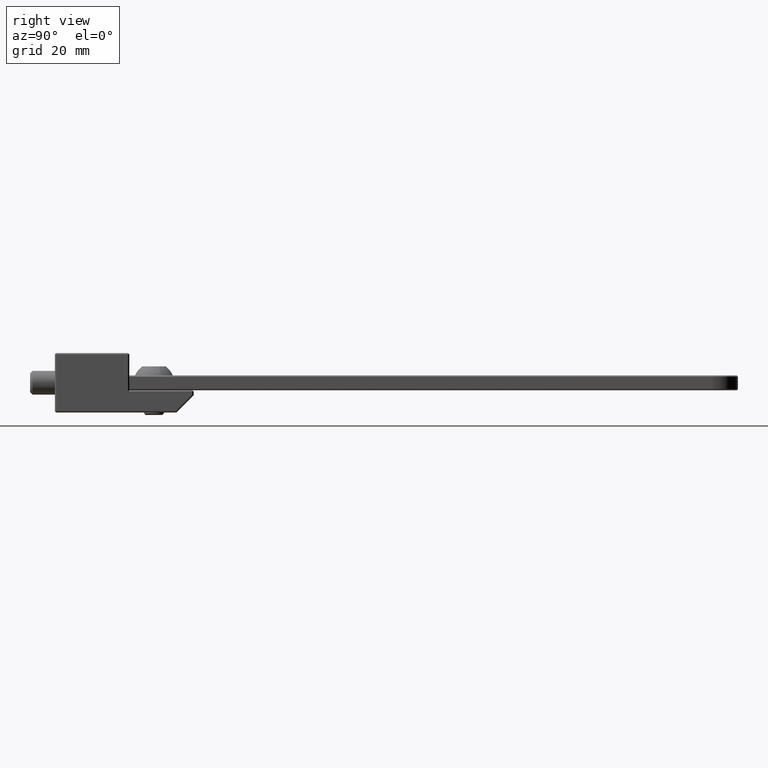
[diagram: clean part render]
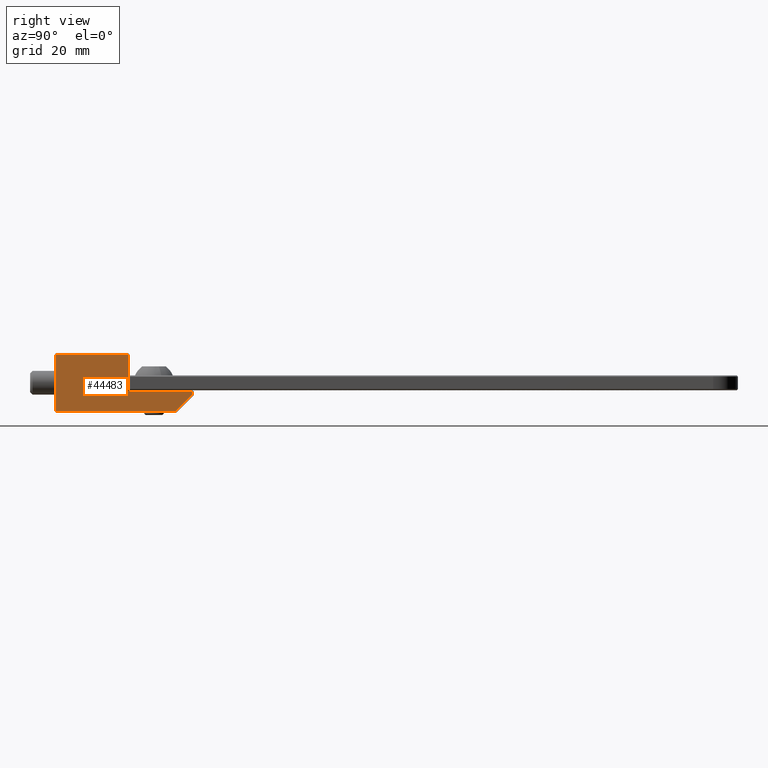
[diagram: same view with one face highlighted and labeled with its STEP entity id]
A machine part, right view. The second image highlights one B-rep face of the part: STEP entity #44483.
In plain terms, the highlighted planar face has unit normal (-1, 0, 0).
Its self-contained STEP definition (entity closure, byte-faithful):
#1872 = VERTEX_POINT ( 'NONE', #49801 ) ;
#3581 = CARTESIAN_POINT ( 'NONE',  ( 17.50000000000001066, 27.82322330470335814, -2.323223304703352809 ) ) ;
#4687 = FACE_OUTER_BOUND ( 'NONE', #81564, .T. ) ;
#5283 = PLANE ( 'NONE',  #11300 ) ;
#6415 = CARTESIAN_POINT ( 'NONE',  ( 17.50000000000001066, 27.74999999999999289, -1.499999999999999778 ) ) ;
#6916 = CARTESIAN_POINT ( 'NONE',  ( 17.50000000000001066, 0.2500000000000071609, 5.749999999999993783 ) ) ;
#7373 = LINE ( 'NONE', #79036, #62157 ) ;
#10467 = CARTESIAN_POINT ( 'NONE',  ( 17.50000000000001066, 0.2500000000000071609, -5.749999999999999112 ) ) ;
#11300 = AXIS2_PLACEMENT_3D ( 'NONE', #50052, #60807, #59616 ) ;
#13458 = VERTEX_POINT ( 'NONE', #6916 ) ;
#15948 = VECTOR ( 'NONE', #19461, 1000.000000000000000 ) ;
#16113 = DIRECTION ( 'NONE',  ( 0.000000000000000000, -1.000000000000000000, 0.000000000000000000 ) ) ;
#19461 = DIRECTION ( 'NONE',  ( 0.000000000000000000, 0.000000000000000000, 1.000000000000000000 ) ) ;
#23824 = LINE ( 'NONE', #53609, #66508 ) ;
#28062 = EDGE_CURVE ( 'NONE', #75432, #13458, #83313, .T. ) ;
#28079 = ORIENTED_EDGE ( 'NONE', *, *, #55759, .T. ) ;
#28238 = EDGE_CURVE ( 'NONE', #72730, #66804, #7373, .T. ) ;
#30462 = LINE ( 'NONE', #3581, #75295 ) ;
#33608 = VECTOR ( 'NONE', #36149, 1000.000000000000000 ) ;
#36149 = DIRECTION ( 'NONE',  ( 0.000000000000000000, -1.000000000000000000, 0.000000000000000000 ) ) ;
#44483 = ADVANCED_FACE ( 'NONE', ( #4687 ), #5283, .F. ) ;
#44571 = CARTESIAN_POINT ( 'NONE',  ( 17.50000000000001066, 24.39644660940670562, -5.749999999999999112 ) ) ;
#45110 = ORIENTED_EDGE ( 'NONE', *, *, #97557, .T. ) ;
#49535 = DIRECTION ( 'NONE',  ( 0.000000000000000000, 0.7071067811865483499, 0.7071067811865467956 ) ) ;
#49801 = CARTESIAN_POINT ( 'NONE',  ( 17.50000000000001066, 27.74999999999999289, -2.396446609406716721 ) ) ;
#50052 = CARTESIAN_POINT ( 'NONE',  ( 17.50000000000001066, 28.00000000000000000, -5.999999999999999112 ) ) ;
#50426 = VERTEX_POINT ( 'NONE', #58896 ) ;
#51787 = DIRECTION ( 'NONE',  ( 0.000000000000000000, -0.000000000000000000, 1.000000000000000000 ) ) ;
#53609 = CARTESIAN_POINT ( 'NONE',  ( 17.50000000000001066, 0.2500000000000071609, -5.999999999999999112 ) ) ;
#55294 = LINE ( 'NONE', #82172, #15948 ) ;
#55759 = EDGE_CURVE ( 'NONE', #81566, #75432, #55294, .T. ) ;
#58896 = CARTESIAN_POINT ( 'NONE',  ( 17.50000000000001066, 27.74999999999999289, -1.749999999999999778 ) ) ;
#59616 = DIRECTION ( 'NONE',  ( 0.000000000000000000, 0.000000000000000000, 1.000000000000000000 ) ) ;
#59934 = EDGE_CURVE ( 'NONE', #66804, #1872, #30462, .T. ) ;
#60386 = ORIENTED_EDGE ( 'NONE', *, *, #63991, .T. ) ;
#60807 = DIRECTION ( 'NONE',  ( -1.000000000000000000, 0.000000000000000000, 0.000000000000000000 ) ) ;
#62157 = VECTOR ( 'NONE', #115492, 1000.000000000000000 ) ;
#63023 = CARTESIAN_POINT ( 'NONE',  ( 17.50000000000001066, 28.00000000000000000, 5.749999999999993783 ) ) ;
#63991 = EDGE_CURVE ( 'NONE', #1872, #50426, #98939, .T. ) ;
#64757 = CARTESIAN_POINT ( 'NONE',  ( 17.50000000000001066, 14.75000000000000000, 5.749999999999993783 ) ) ;
#66508 = VECTOR ( 'NONE', #107993, 1000.000000000000000 ) ;
#66804 = VERTEX_POINT ( 'NONE', #44571 ) ;
#67552 = ORIENTED_EDGE ( 'NONE', *, *, #28238, .T. ) ;
#69878 = LINE ( 'NONE', #87195, #107103 ) ;
#72730 = VERTEX_POINT ( 'NONE', #10467 ) ;
#72835 = VECTOR ( 'NONE', #51787, 1000.000000000000000 ) ;
#75295 = VECTOR ( 'NONE', #49535, 999.9999999999998863 ) ;
#75432 = VERTEX_POINT ( 'NONE', #64757 ) ;
#79036 = CARTESIAN_POINT ( 'NONE',  ( 17.50000000000001066, 28.00000000000000000, -5.749999999999999112 ) ) ;
#81564 = EDGE_LOOP ( 'NONE', ( #113362, #113103, #67552, #89923, #60386, #45110, #28079 ) ) ;
#81566 = VERTEX_POINT ( 'NONE', #102376 ) ;
#82172 = CARTESIAN_POINT ( 'NONE',  ( 17.50000000000001066, 14.75000000000000000, -5.999999999999999112 ) ) ;
#83313 = LINE ( 'NONE', #63023, #33608 ) ;
#87195 = CARTESIAN_POINT ( 'NONE',  ( 17.50000000000001066, 28.00000000000000000, -1.749999999999999778 ) ) ;
#89923 = ORIENTED_EDGE ( 'NONE', *, *, #59934, .T. ) ;
#97557 = EDGE_CURVE ( 'NONE', #50426, #81566, #69878, .T. ) ;
#98939 = LINE ( 'NONE', #6415, #72835 ) ;
#102376 = CARTESIAN_POINT ( 'NONE',  ( 17.50000000000001066, 14.75000000000000000, -1.749999999999999778 ) ) ;
#107103 = VECTOR ( 'NONE', #16113, 1000.000000000000000 ) ;
#107993 = DIRECTION ( 'NONE',  ( 0.000000000000000000, 0.000000000000000000, -1.000000000000000000 ) ) ;
#112341 = EDGE_CURVE ( 'NONE', #13458, #72730, #23824, .T. ) ;
#113103 = ORIENTED_EDGE ( 'NONE', *, *, #112341, .T. ) ;
#113362 = ORIENTED_EDGE ( 'NONE', *, *, #28062, .T. ) ;
#115492 = DIRECTION ( 'NONE',  ( 0.000000000000000000, 1.000000000000000000, 0.000000000000000000 ) ) ;